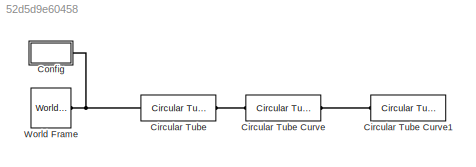
MODEL slx_52d5d9e60458
KIND model
CONFIG AbsTol = auto
CONFIG EnableMultiTasking = on
CONFIG FixedStep = auto
CONFIG MaxStep = auto
CONFIG MinStep = auto
CONFIG RelTol = 1e-3
CONFIG SampleTimeConstraint = Unconstrained
CONFIG Solver = VariableStepAuto
CONFIG SolverName = VariableStepAuto
CONFIG StartTime = 0.0
CONFIG StopTime = 10.0
BLOCK [Reference] Circular Tube  REF=Multibody_Parts_Lib/Extrusions/Circular Tube
  Ports = [0, 0, 0, 0, 0, 1, 1]
  SourceBlock = Multibody_Parts_Lib/Extrusions/Circular Tube
  SourceProductName = Simscape Multibody Parts Library
  SourceType = Elliptical Tube
BLOCK [Reference] Circular Tube Curve  REF=Multibody_Parts_Lib/Extrusions/Circular Tube Curve
  Ports = [0, 0, 0, 0, 0, 1, 1]
  SourceBlock = Multibody_Parts_Lib/Extrusions/Circular Tube Curve
  SourceProductName = Simscape Multibody Parts Library
  SourceType = Curved Circular Tube
BLOCK [Reference] Circular Tube Curve1  REF=Multibody_Parts_Lib/Extrusions/Circular Tube Curve
  Ports = [0, 0, 0, 0, 0, 1, 1]
  SourceBlock = Multibody_Parts_Lib/Extrusions/Circular Tube Curve
  SourceProductName = Simscape Multibody Parts Library
  SourceType = Curved Circular Tube
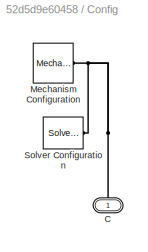
BLOCK [SubSystem] Config
  Ports = [0, 0, 0, 0, 0, 1]
  RequestExecContextInheritance = off
BLOCK [PMIOPort] Config/C
  Side = Left
BLOCK [Reference] Config/Mechanism Configuration  REF=sm_lib/Utilities/Mechanism
Configuration
  Ports = [0, 0, 0, 0, 0, 0, 1]
  SourceBlock = sm_lib/Utilities/Mechanism\nConfiguration
  SourceProductBaseCode = MS
  SourceProductName = Simscape Multibody
  SourceType = Mechanism\nConfiguration
BLOCK [Reference] Config/Solver Configuration  REF=nesl_utility/Solver
Configuration
  Ports = [0, 0, 0, 0, 0, 0, 1]
  SourceBlock = nesl_utility/Solver\nConfiguration
  SourceProductBaseCode = SS
  SourceProductName = Simscape
  SourceType = Solver\nConfiguration
BLOCK [Reference] World Frame  REF=sm_lib/Frames and
Transforms/World Frame
  Ports = [0, 0, 0, 0, 0, 0, 1]
  SourceBlock = sm_lib/Frames and\nTransforms/World Frame
  SourceProductBaseCode = MS
  SourceProductName = Simscape Multibody
  SourceType = World Frame
PLINE Circular Tube Curve1:RConn1 -- Circular Tube Curve:LConn1
PLINE Circular Tube Curve:RConn1 -- Circular Tube:LConn1
PNET net1: Circular Tube:RConn1 -- Config:LConn1 -- World Frame:RConn1
PNET net2: Config/C:RConn1 -- Config/Mechanism Configuration:RConn1 -- Config/Solver Configuration:RConn1
note: PNET lines group multi-terminal physical nets as a canonical sorted terminal list (undirected conserving connections); 2-terminal nets keep the pairwise PLINE form
